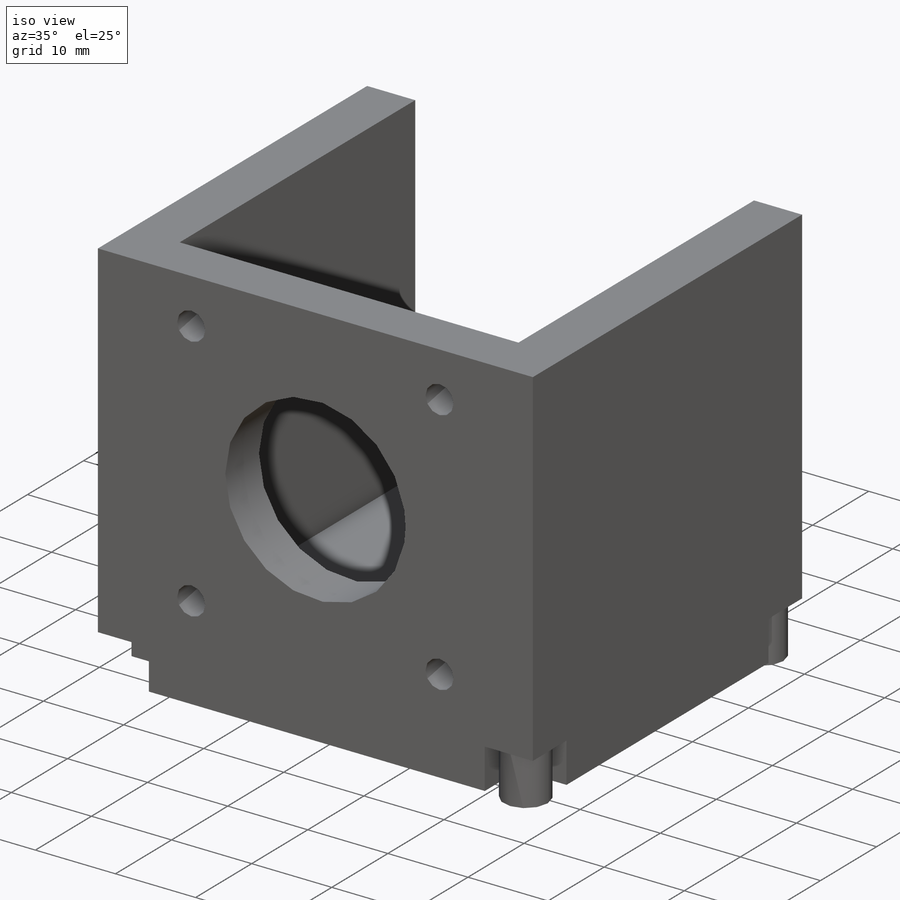
[diagram: iso view]
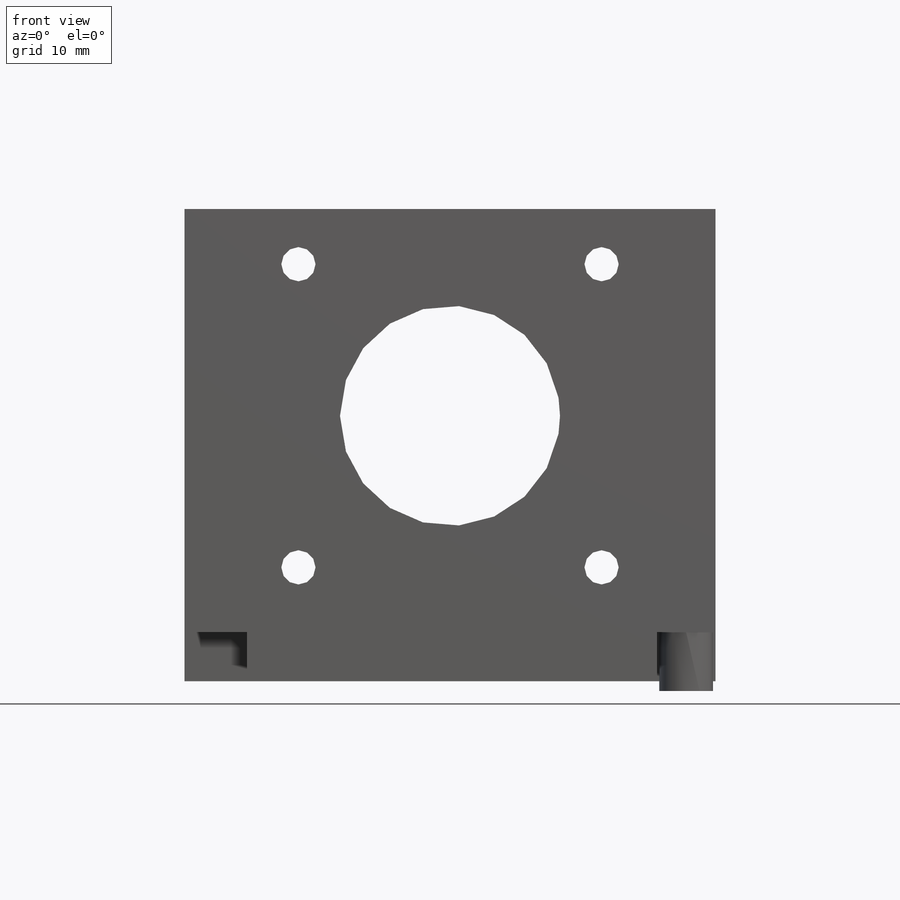
[diagram: front view]
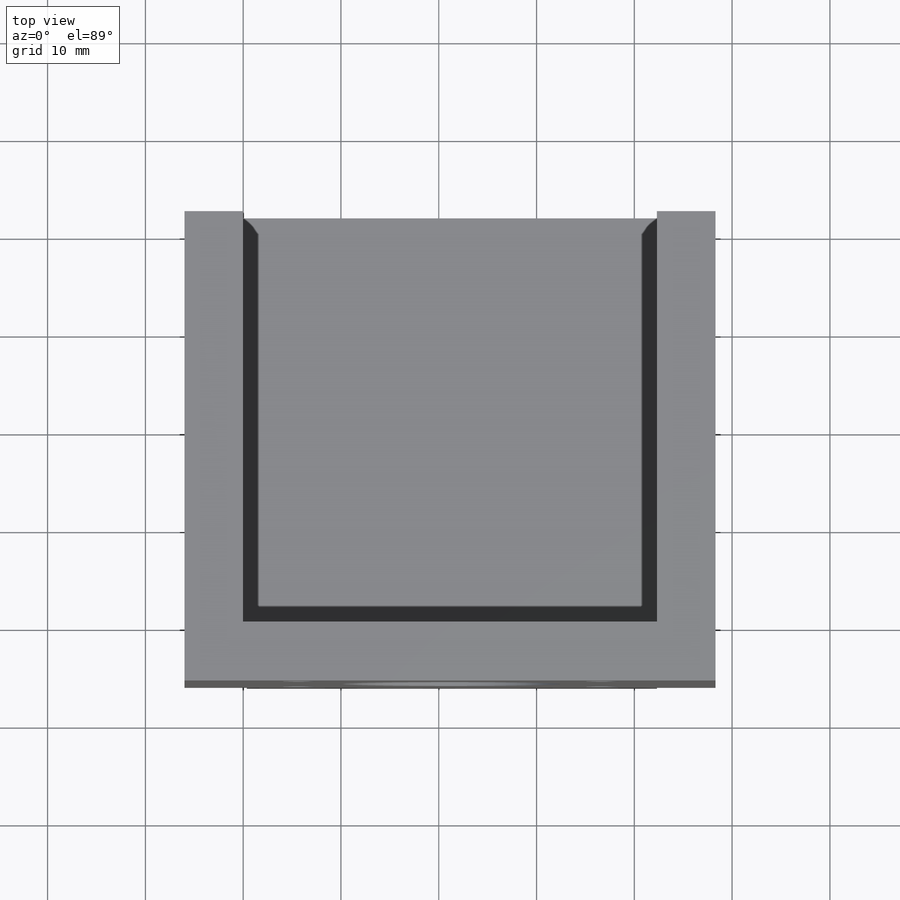
[diagram: top view]
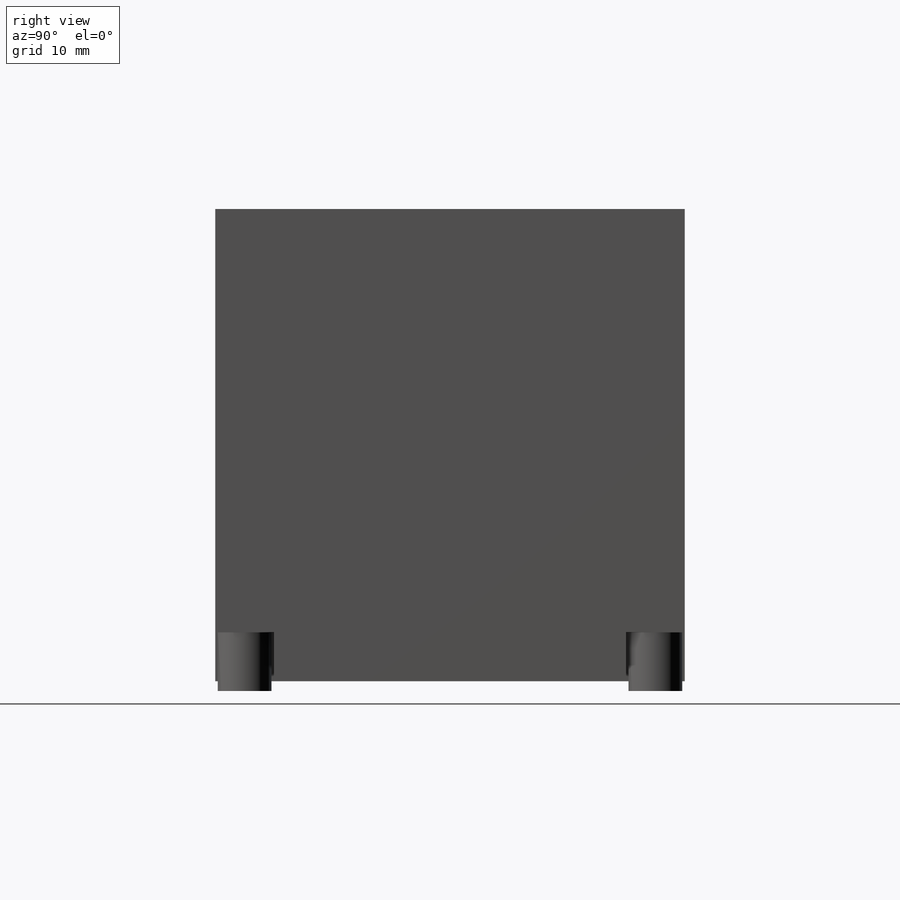
[diagram: right view]
SOLIDWORKS PART (.sldprt)
format: sldprt  version: not decoded by parser v0  size: 335,360 bytes
history: native  units: mm
features: sketch x7, extrude x6, plane x3, material x1, cut_extrude x1 (+10 scaffold rows collapsed)
feature tree (28):
  scaffold x10  (default folders/planes/origin — collapsed)
  material  "Материал <не указан>"
  plane  "Спереди"
  plane  "Сверху"
  plane  "Справа"
  sketch  "Эскиз1"  dims[D3=3.5mm D8=22.5mm D1=42.3mm D2=42.3mm D4=15.5mm D5=15.5mm D6=2.0 D7=2.0]
  extrude  "Бобышка-Вытянуть1"  Depth=6mm
  sketch  "Эскиз2"  dims[D1=48.0mm]
  extrude  "Бобышка-Вытянуть2"  Depth=6mm
  sketch  "Эскиз3"  dims[D1=48.0mm]
  extrude  "Бобышка-Вытянуть3"  Depth=6mm
  sketch  "Эскиз4"
  extrude  "Бобышка-Вытянуть4"  Depth=6mm
  sketch  "Эскиз5"  dims[D1=6.0mm D2=6.0mm D3=6.0mm]
  cut_extrude  "Вырез-Вытянуть1"  Depth=5mm
  sketch  "Эскиз6"  dims[D1=5.5mm]
  extrude  "Бобышка-Вытянуть5"  Depth=6mm
  sketch  "Эскиз7"  dims[D1=5.5mm]
  extrude  "Бобышка-Вытянуть6"  Depth=6mm
decode coverage: 13 of 14 modeling features carry decoded parameters
note: suppression state not decoded; provenance and decode notes live in map.json
